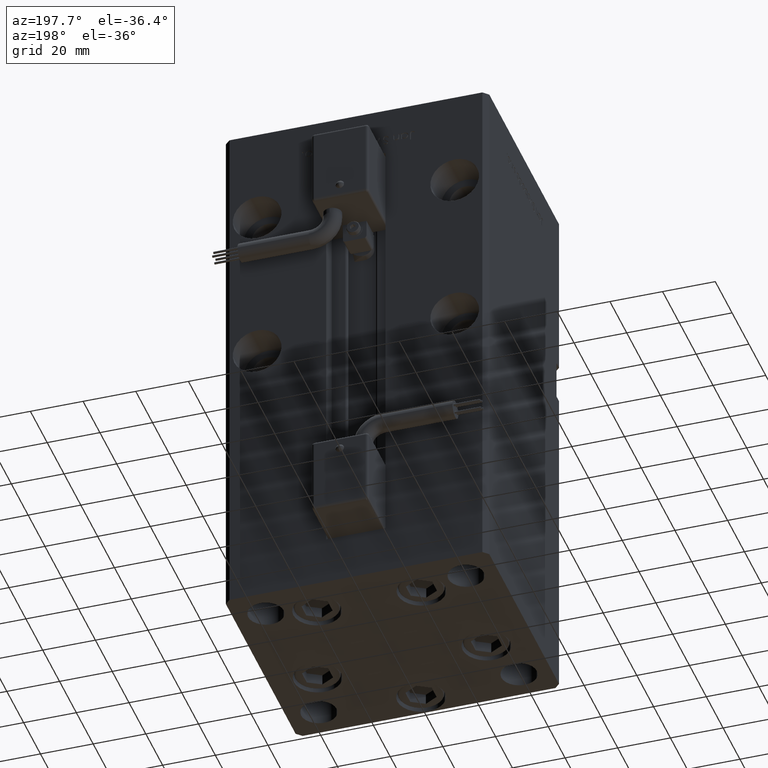
[diagram: clean part render]
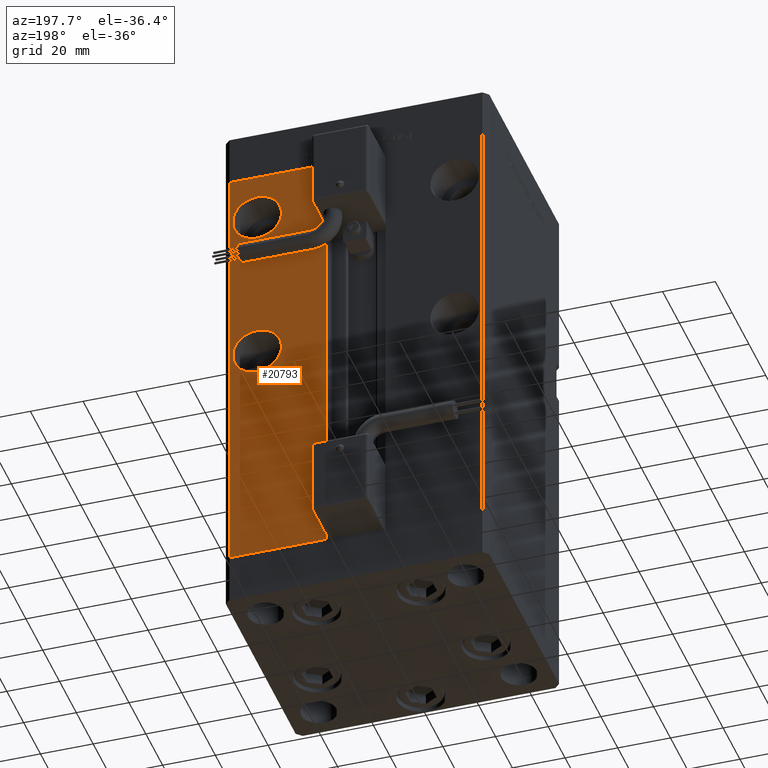
[diagram: same view with one face highlighted and labeled with its STEP entity id]
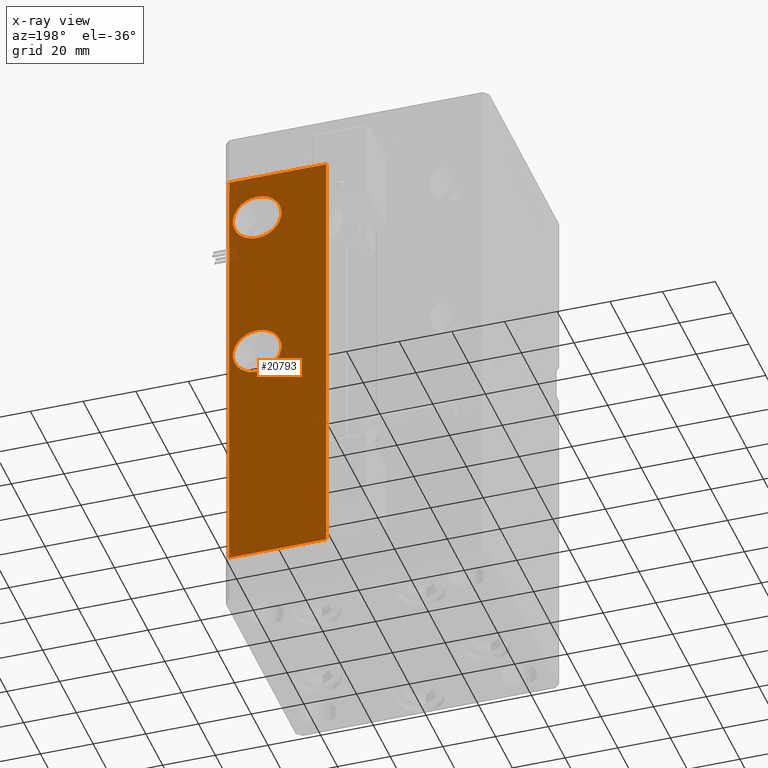
[diagram: x-ray of the same camera — body ghosted, the highlighted face saturated]
A machine part, auxiliary view. The second image highlights one B-rep face of the part: STEP entity #20793.
The next image is the same camera in x-ray: the body ghosted, the highlighted face saturated — about 0% of this face is hidden behind the body in this view.
In plain terms, the highlighted planar face has unit normal (0, -1, 0).
Its self-contained STEP definition (entity closure, byte-faithful):
#774 = ORIENTED_EDGE ( 'NONE', *, *, #27073, .F. ) ;
#1297 = CARTESIAN_POINT ( 'NONE',  ( 37.50000000000000000, 43.50000000000000000, 81.25000000000001421 ) ) ;
#1470 = ORIENTED_EDGE ( 'NONE', *, *, #46946, .F. ) ;
#1599 = VECTOR ( 'NONE', #48607, 1000.000000000000000 ) ;
#2521 = CIRCLE ( 'NONE', #36253, 9.250000000000008882 ) ;
#2528 = DIRECTION ( 'NONE',  ( 1.000000000000000000, 0.000000000000000000, 0.000000000000000000 ) ) ;
#3880 = DIRECTION ( 'NONE',  ( -0.000000000000000000, -0.000000000000000000, 1.000000000000000000 ) ) ;
#8941 = VERTEX_POINT ( 'NONE', #20800 ) ;
#9149 = CARTESIAN_POINT ( 'NONE',  ( 11.24999999999999645, 43.50000000000000000, 0.000000000000000000 ) ) ;
#10475 = VECTOR ( 'NONE', #2528, 1000.000000000000000 ) ;
#10697 = LINE ( 'NONE', #28638, #29878 ) ;
#11240 = VECTOR ( 'NONE', #3880, 1000.000000000000000 ) ;
#11571 = DIRECTION ( 'NONE',  ( 0.000000000000000000, 1.000000000000000000, -0.000000000000000000 ) ) ;
#12340 = VERTEX_POINT ( 'NONE', #41483 ) ;
#12411 = AXIS2_PLACEMENT_3D ( 'NONE', #23786, #37196, #41193 ) ;
#12972 = LINE ( 'NONE', #18088, #1599 ) ;
#14033 = VERTEX_POINT ( 'NONE', #33289 ) ;
#16055 = CARTESIAN_POINT ( 'NONE',  ( 37.50000000000000000, 43.50000000000000000, 141.2500000000000284 ) ) ;
#16883 = VERTEX_POINT ( 'NONE', #9149 ) ;
#18088 = CARTESIAN_POINT ( 'NONE',  ( -11.24999999999999645, 43.50000000000000000, 0.000000000000000000 ) ) ;
#19128 = DIRECTION ( 'NONE',  ( 0.000000000000000000, 1.000000000000000000, 0.000000000000000000 ) ) ;
#19714 = DIRECTION ( 'NONE',  ( 0.000000000000000000, 1.000000000000000000, -0.000000000000000000 ) ) ;
#19861 = ORIENTED_EDGE ( 'NONE', *, *, #53929, .T. ) ;
#19962 = CARTESIAN_POINT ( 'NONE',  ( 37.50000000000000000, 43.50000000000000000, 150.5000000000000284 ) ) ;
#20788 = ORIENTED_EDGE ( 'NONE', *, *, #23246, .T. ) ;
#20793 = ADVANCED_FACE ( 'NONE', ( #26503, #52467, #52745 ), #25657, .F. ) ;
#20800 = CARTESIAN_POINT ( 'NONE',  ( 37.50000000000000000, 43.50000000000000000, 159.7500000000000284 ) ) ;
#20811 = DIRECTION ( 'NONE',  ( 0.000000000000000000, 0.000000000000000000, -1.000000000000000000 ) ) ;
#23246 = EDGE_CURVE ( 'NONE', #24509, #36380, #28496, .T. ) ;
#23786 = CARTESIAN_POINT ( 'NONE',  ( 37.50000000000000000, 43.50000000000000000, 150.5000000000000284 ) ) ;
#24509 = VERTEX_POINT ( 'NONE', #30500 ) ;
#25215 = EDGE_LOOP ( 'NONE', ( #48301, #50686 ) ) ;
#25360 = ORIENTED_EDGE ( 'NONE', *, *, #31488, .T. ) ;
#25657 = PLANE ( 'NONE',  #48646 ) ;
#25673 = AXIS2_PLACEMENT_3D ( 'NONE', #19962, #19128, #50203 ) ;
#25800 = CARTESIAN_POINT ( 'NONE',  ( 37.50000000000000000, 43.50000000000000000, 90.50000000000002842 ) ) ;
#26503 = FACE_BOUND ( 'NONE', #25215, .T. ) ;
#27073 = EDGE_CURVE ( 'NONE', #28801, #8941, #54319, .T. ) ;
#27481 = EDGE_LOOP ( 'NONE', ( #1470, #774 ) ) ;
#28496 = LINE ( 'NONE', #41069, #10475 ) ;
#28638 = CARTESIAN_POINT ( 'NONE',  ( 48.00000000000000711, 43.50000000000000000, 168.5000000000000000 ) ) ;
#28801 = VERTEX_POINT ( 'NONE', #16055 ) ;
#29878 = VECTOR ( 'NONE', #37485, 1000.000000000000000 ) ;
#30500 = CARTESIAN_POINT ( 'NONE',  ( 11.24999999999998934, 43.50000000000000000, 168.5000000000000000 ) ) ;
#31415 = EDGE_CURVE ( 'NONE', #12340, #33274, #2521, .T. ) ;
#31488 = EDGE_CURVE ( 'NONE', #14033, #16883, #12972, .T. ) ;
#31928 = CIRCLE ( 'NONE', #35545, 9.250000000000008882 ) ;
#32564 = EDGE_CURVE ( 'NONE', #36380, #14033, #10697, .T. ) ;
#33274 = VERTEX_POINT ( 'NONE', #1297 ) ;
#33289 = CARTESIAN_POINT ( 'NONE',  ( 48.00000000000000711, 43.50000000000000000, 0.000000000000000000 ) ) ;
#33549 = CARTESIAN_POINT ( 'NONE',  ( 11.24999999999999645, 43.50000000000000000, 0.000000000000000000 ) ) ;
#35545 = AXIS2_PLACEMENT_3D ( 'NONE', #53956, #19714, #20811 ) ;
#36253 = AXIS2_PLACEMENT_3D ( 'NONE', #25800, #11571, #46630 ) ;
#36380 = VERTEX_POINT ( 'NONE', #48013 ) ;
#37196 = DIRECTION ( 'NONE',  ( 0.000000000000000000, 1.000000000000000000, 0.000000000000000000 ) ) ;
#37485 = DIRECTION ( 'NONE',  ( -0.000000000000000000, -0.000000000000000000, -1.000000000000000000 ) ) ;
#38967 = LINE ( 'NONE', #33549, #11240 ) ;
#39353 = CARTESIAN_POINT ( 'NONE',  ( -11.24999999999999645, 43.50000000000000000, 168.5000000000000000 ) ) ;
#41069 = CARTESIAN_POINT ( 'NONE',  ( -11.24999999999999645, 43.50000000000000000, 168.5000000000000000 ) ) ;
#41193 = DIRECTION ( 'NONE',  ( 0.000000000000000000, 0.000000000000000000, 1.000000000000000000 ) ) ;
#41483 = CARTESIAN_POINT ( 'NONE',  ( 37.50000000000000000, 43.50000000000000000, 99.75000000000002842 ) ) ;
#41525 = EDGE_CURVE ( 'NONE', #33274, #12340, #31928, .T. ) ;
#46114 = ORIENTED_EDGE ( 'NONE', *, *, #32564, .T. ) ;
#46630 = DIRECTION ( 'NONE',  ( 0.000000000000000000, 0.000000000000000000, -1.000000000000000000 ) ) ;
#46946 = EDGE_CURVE ( 'NONE', #8941, #28801, #53958, .T. ) ;
#47619 = DIRECTION ( 'NONE',  ( 0.000000000000000000, -1.000000000000000000, 0.000000000000000000 ) ) ;
#48013 = CARTESIAN_POINT ( 'NONE',  ( 48.00000000000000711, 43.50000000000000000, 168.5000000000000000 ) ) ;
#48301 = ORIENTED_EDGE ( 'NONE', *, *, #31415, .F. ) ;
#48607 = DIRECTION ( 'NONE',  ( -1.000000000000000000, 0.000000000000000000, 0.000000000000000000 ) ) ;
#48646 = AXIS2_PLACEMENT_3D ( 'NONE', #39353, #47619, #51904 ) ;
#50203 = DIRECTION ( 'NONE',  ( 0.000000000000000000, 0.000000000000000000, 1.000000000000000000 ) ) ;
#50686 = ORIENTED_EDGE ( 'NONE', *, *, #41525, .F. ) ;
#51675 = EDGE_LOOP ( 'NONE', ( #25360, #19861, #20788, #46114 ) ) ;
#51904 = DIRECTION ( 'NONE',  ( 0.000000000000000000, -0.000000000000000000, -1.000000000000000000 ) ) ;
#52467 = FACE_BOUND ( 'NONE', #27481, .T. ) ;
#52745 = FACE_OUTER_BOUND ( 'NONE', #51675, .T. ) ;
#53929 = EDGE_CURVE ( 'NONE', #16883, #24509, #38967, .T. ) ;
#53956 = CARTESIAN_POINT ( 'NONE',  ( 37.50000000000000000, 43.50000000000000000, 90.50000000000002842 ) ) ;
#53958 = CIRCLE ( 'NONE', #25673, 9.250000000000008882 ) ;
#54319 = CIRCLE ( 'NONE', #12411, 9.250000000000008882 ) ;